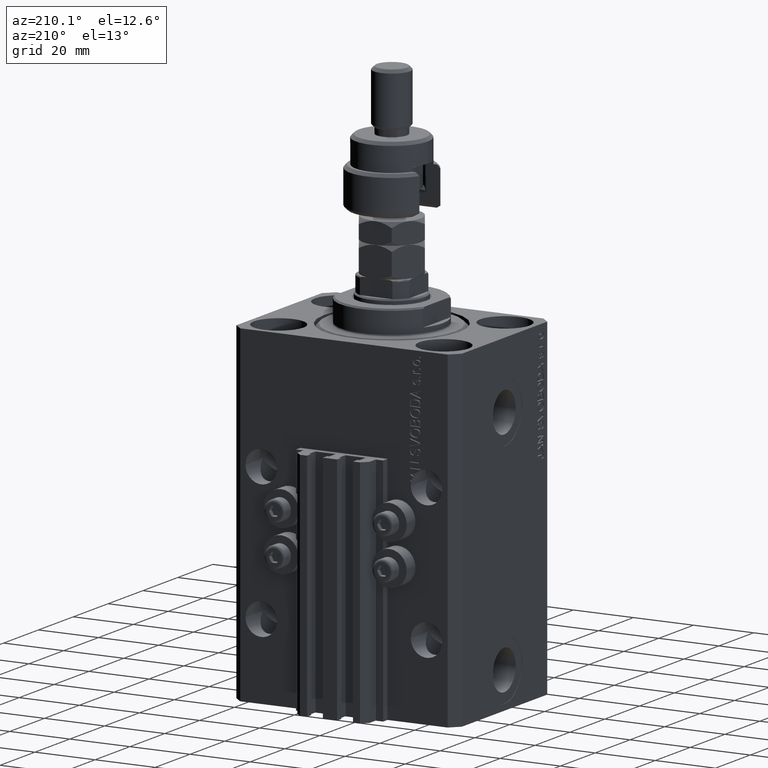
[diagram: clean part render]
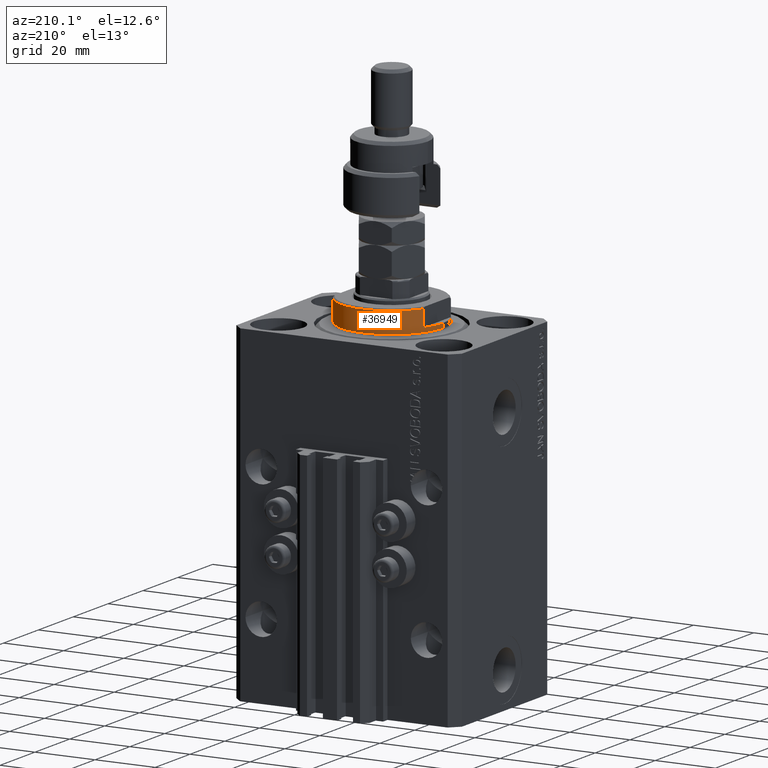
[diagram: same view with one face highlighted and labeled with its STEP entity id]
A machine part, auxiliary view. The second image highlights one B-rep face of the part: STEP entity #36949.
In plain terms, the highlighted cylindrical surface (partial cylindrical patch) has radius 17 mm, axis along (0, 0, -1).
Its self-contained STEP definition (entity closure, byte-faithful):
#458 = EDGE_CURVE ( 'NONE', #39927, #29489, #41867, .T. ) ;
#2537 = EDGE_CURVE ( 'NONE', #41460, #11971, #12272, .T. ) ;
#2858 = EDGE_CURVE ( 'NONE', #29489, #11971, #29008, .T. ) ;
#4529 = CIRCLE ( 'NONE', #45012, 17.00000000000000000 ) ;
#4702 = AXIS2_PLACEMENT_3D ( 'NONE', #14383, #20990, #18169 ) ;
#5716 = DIRECTION ( 'NONE',  ( 0.000000000000000000, 0.000000000000000000, -1.000000000000000000 ) ) ;
#10162 = DIRECTION ( 'NONE',  ( 0.000000000000000000, 0.000000000000000000, 1.000000000000000000 ) ) ;
#10388 = DIRECTION ( 'NONE',  ( -1.000000000000000000, 0.000000000000000000, 0.000000000000000000 ) ) ;
#11788 = EDGE_CURVE ( 'NONE', #18694, #15378, #23429, .T. ) ;
#11971 = VERTEX_POINT ( 'NONE', #18830 ) ;
#12272 = LINE ( 'NONE', #43205, #24938 ) ;
#14383 = CARTESIAN_POINT ( 'NONE',  ( 0.000000000000000000, 0.000000000000000000, -8.000000000000000000 ) ) ;
#14493 = AXIS2_PLACEMENT_3D ( 'NONE', #32857, #5716, #29057 ) ;
#15285 = VERTEX_POINT ( 'NONE', #17653 ) ;
#15378 = VERTEX_POINT ( 'NONE', #42490 ) ;
#16451 = ORIENTED_EDGE ( 'NONE', *, *, #2537, .F. ) ;
#17653 = CARTESIAN_POINT ( 'NONE',  ( -14.99999999999999645, 8.000000000000003553, -2.000000000000000000 ) ) ;
#17971 = DIRECTION ( 'NONE',  ( 0.000000000000000000, 0.000000000000000000, -1.000000000000000000 ) ) ;
#18169 = DIRECTION ( 'NONE',  ( 1.000000000000000000, 0.000000000000000000, 0.000000000000000000 ) ) ;
#18694 = VERTEX_POINT ( 'NONE', #46346 ) ;
#18774 = ORIENTED_EDGE ( 'NONE', *, *, #38267, .F. ) ;
#18830 = CARTESIAN_POINT ( 'NONE',  ( 17.00000000000000000, 0.000000000000000000, -0.5000000000000004441 ) ) ;
#19574 = VECTOR ( 'NONE', #43465, 1000.000000000000000 ) ;
#19874 = CARTESIAN_POINT ( 'NONE',  ( 15.00000000000000000, 8.000000000000001776, -8.000000000000000000 ) ) ;
#20990 = DIRECTION ( 'NONE',  ( -0.000000000000000000, -0.000000000000000000, 1.000000000000000000 ) ) ;
#23429 = LINE ( 'NONE', #19874, #19574 ) ;
#24858 = EDGE_CURVE ( 'NONE', #18694, #43643, #4529, .T. ) ;
#24938 = VECTOR ( 'NONE', #42709, 1000.000000000000000 ) ;
#25102 = DIRECTION ( 'NONE',  ( -1.000000000000000000, 0.000000000000000000, 0.000000000000000000 ) ) ;
#26027 = FACE_OUTER_BOUND ( 'NONE', #28916, .T. ) ;
#26480 = CARTESIAN_POINT ( 'NONE',  ( -15.00000000000000000, 8.000000000000001776, -7.500000000000007105 ) ) ;
#26644 = CARTESIAN_POINT ( 'NONE',  ( 17.00000000000000000, 0.000000000000000000, -2.000000000000000000 ) ) ;
#27364 = VECTOR ( 'NONE', #38055, 1000.000000000000000 ) ;
#28230 = DIRECTION ( 'NONE',  ( -0.000000000000000000, -0.000000000000000000, 1.000000000000000000 ) ) ;
#28916 = EDGE_LOOP ( 'NONE', ( #18774, #41846, #43843, #16451, #34512, #30766, #34457, #39022 ) ) ;
#29008 = CIRCLE ( 'NONE', #48420, 17.00000000000000000 ) ;
#29057 = DIRECTION ( 'NONE',  ( -1.000000000000000000, 0.000000000000000000, 0.000000000000000000 ) ) ;
#29489 = VERTEX_POINT ( 'NONE', #44824 ) ;
#30203 = CARTESIAN_POINT ( 'NONE',  ( -17.00000000000000000, 2.081899558550500280E-15, -8.000000000000000000 ) ) ;
#30442 = DIRECTION ( 'NONE',  ( -0.000000000000000000, -0.000000000000000000, -1.000000000000000000 ) ) ;
#30766 = ORIENTED_EDGE ( 'NONE', *, *, #11788, .F. ) ;
#31070 = CARTESIAN_POINT ( 'NONE',  ( -17.00000000000000000, 2.081899558550500280E-15, -2.000000000000000000 ) ) ;
#32857 = CARTESIAN_POINT ( 'NONE',  ( 0.000000000000000000, 0.000000000000000000, -2.000000000000000000 ) ) ;
#33405 = EDGE_CURVE ( 'NONE', #43643, #15285, #43214, .T. ) ;
#33983 = CARTESIAN_POINT ( 'NONE',  ( 0.000000000000000000, 0.000000000000000000, -0.5000000000000004441 ) ) ;
#34457 = ORIENTED_EDGE ( 'NONE', *, *, #24858, .T. ) ;
#34512 = ORIENTED_EDGE ( 'NONE', *, *, #49964, .F. ) ;
#36949 = ADVANCED_FACE ( 'NONE', ( #26027 ), #48390, .T. ) ;
#37250 = CARTESIAN_POINT ( 'NONE',  ( 0.000000000000000000, 0.000000000000000000, -2.000000000000000000 ) ) ;
#37270 = CARTESIAN_POINT ( 'NONE',  ( 0.000000000000000000, 0.000000000000000000, -7.500000000000007105 ) ) ;
#38055 = DIRECTION ( 'NONE',  ( -0.000000000000000000, -0.000000000000000000, 1.000000000000000000 ) ) ;
#38267 = EDGE_CURVE ( 'NONE', #39927, #15285, #47698, .T. ) ;
#38545 = DIRECTION ( 'NONE',  ( 1.000000000000000000, 0.000000000000000000, 0.000000000000000000 ) ) ;
#38593 = VECTOR ( 'NONE', #28230, 1000.000000000000000 ) ;
#39022 = ORIENTED_EDGE ( 'NONE', *, *, #33405, .T. ) ;
#39643 = CARTESIAN_POINT ( 'NONE',  ( -15.00000000000000000, 8.000000000000001776, -8.000000000000000000 ) ) ;
#39927 = VERTEX_POINT ( 'NONE', #31070 ) ;
#40701 = AXIS2_PLACEMENT_3D ( 'NONE', #37250, #17971, #10388 ) ;
#41460 = VERTEX_POINT ( 'NONE', #26644 ) ;
#41846 = ORIENTED_EDGE ( 'NONE', *, *, #458, .T. ) ;
#41867 = LINE ( 'NONE', #30203, #27364 ) ;
#42490 = CARTESIAN_POINT ( 'NONE',  ( 14.99999999999999645, 8.000000000000003553, -2.000000000000000000 ) ) ;
#42709 = DIRECTION ( 'NONE',  ( -0.000000000000000000, -0.000000000000000000, 1.000000000000000000 ) ) ;
#43205 = CARTESIAN_POINT ( 'NONE',  ( 17.00000000000000000, 0.000000000000000000, -8.000000000000000000 ) ) ;
#43214 = LINE ( 'NONE', #39643, #38593 ) ;
#43465 = DIRECTION ( 'NONE',  ( -0.000000000000000000, -0.000000000000000000, 1.000000000000000000 ) ) ;
#43643 = VERTEX_POINT ( 'NONE', #26480 ) ;
#43843 = ORIENTED_EDGE ( 'NONE', *, *, #2858, .T. ) ;
#44824 = CARTESIAN_POINT ( 'NONE',  ( -17.00000000000000000, 2.081899558550500280E-15, -0.5000000000000004441 ) ) ;
#45012 = AXIS2_PLACEMENT_3D ( 'NONE', #37270, #10162, #25102 ) ;
#46346 = CARTESIAN_POINT ( 'NONE',  ( 15.00000000000000000, 8.000000000000001776, -7.500000000000007105 ) ) ;
#47698 = CIRCLE ( 'NONE', #14493, 17.00000000000000000 ) ;
#48029 = CIRCLE ( 'NONE', #40701, 17.00000000000000000 ) ;
#48390 = CYLINDRICAL_SURFACE ( 'NONE', #4702, 17.00000000000000000 ) ;
#48420 = AXIS2_PLACEMENT_3D ( 'NONE', #33983, #30442, #38545 ) ;
#49964 = EDGE_CURVE ( 'NONE', #15378, #41460, #48029, .T. ) ;